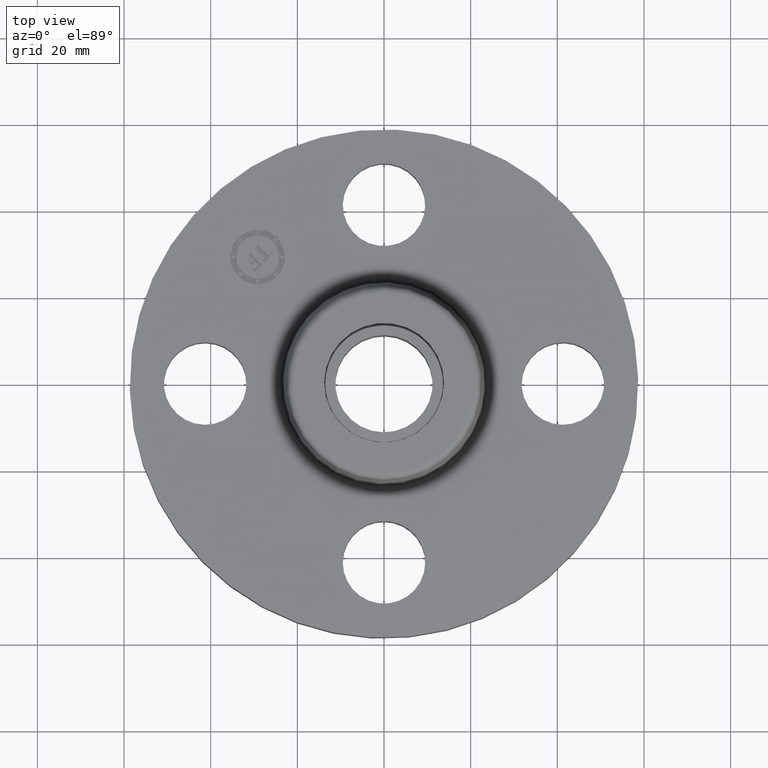
[diagram: clean part render]
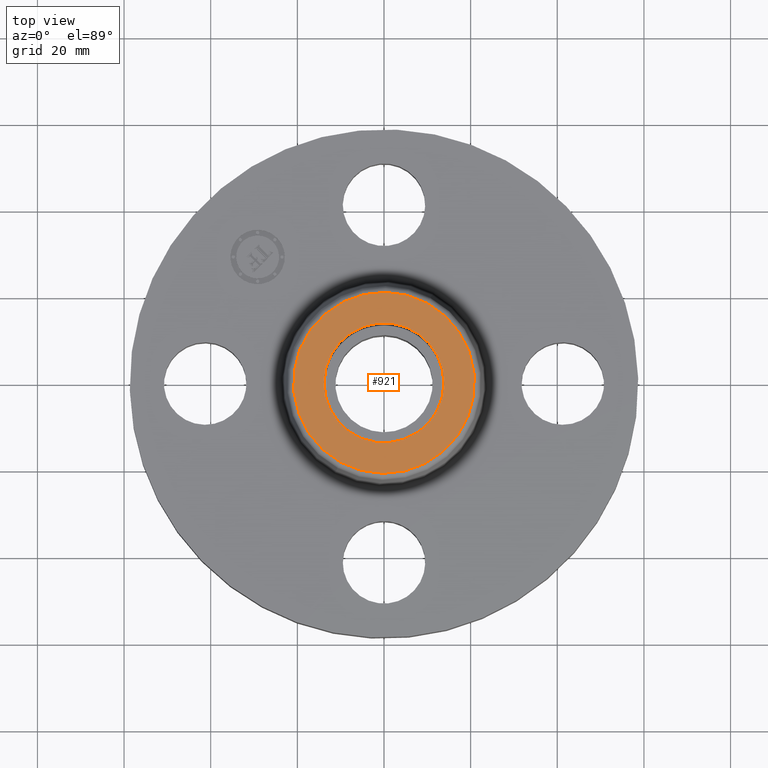
[diagram: same view with one face highlighted and labeled with its STEP entity id]
A machine part, top view. The second image highlights one B-rep face of the part: STEP entity #921.
In plain terms, the highlighted planar face has unit normal (0, 0, -1).
Its self-contained STEP definition (entity closure, byte-faithful):
#842=AXIS2_PLACEMENT_3D('Circle Axis2P3D',#840,#841,$) ;
#861=AXIS2_PLACEMENT_3D('Circle Axis2P3D',#859,#860,$) ;
#897=AXIS2_PLACEMENT_3D('Plane Axis2P3D',#894,#895,#896) ;
#905=AXIS2_PLACEMENT_3D('Circle Axis2P3D',#903,#904,$) ;
#914=AXIS2_PLACEMENT_3D('Circle Axis2P3D',#912,#913,$) ;
#837=CARTESIAN_POINT('Vertex',(0.394399308808,0.721943092224,1.)) ;
#840=CARTESIAN_POINT('Axis2P3D Location',(0.,0.,1.)) ;
#844=CARTESIAN_POINT('Vertex',(-0.394399308808,-0.721943092224,1.)) ;
#859=CARTESIAN_POINT('Axis2P3D Location',(0.,0.,1.)) ;
#894=CARTESIAN_POINT('Axis2P3D Location',(0.,0.822649769463,1.)) ;
#903=CARTESIAN_POINT('Axis2P3D Location',(1.39870617276E-016,-2.79741234551E-016,1.)) ;
#907=CARTESIAN_POINT('Vertex',(-0.478282496232,0.26128691854,1.)) ;
#909=CARTESIAN_POINT('Vertex',(0.478282496232,-0.26128691854,1.)) ;
#912=CARTESIAN_POINT('Axis2P3D Location',(1.22386790116E-016,0.,1.)) ;
#841=DIRECTION('Axis2P3D Direction',(0.,0.,-0.0393700787402)) ;
#860=DIRECTION('Axis2P3D Direction',(0.,0.,-0.0393700787402)) ;
#895=DIRECTION('Axis2P3D Direction',(0.,0.,-0.0393700787402)) ;
#896=DIRECTION('Axis2P3D XDirection',(0.0393700787402,0.,0.)) ;
#904=DIRECTION('Axis2P3D Direction',(0.,0.,-0.0393700787402)) ;
#913=DIRECTION('Axis2P3D Direction',(0.,0.,-0.0393700787402)) ;
#900=ORIENTED_EDGE('',*,*,#846,.F.) ;
#901=ORIENTED_EDGE('',*,*,#863,.F.) ;
#918=ORIENTED_EDGE('',*,*,#911,.T.) ;
#919=ORIENTED_EDGE('',*,*,#916,.T.) ;
#920=FACE_BOUND('',#917,.T.) ;
#921=ADVANCED_FACE('PartBody',(#902,#920),#898,.F.) ;
#843=CIRCLE('generated circle',#842,0.822649769463) ;
#862=CIRCLE('generated circle',#861,0.822649769463) ;
#906=CIRCLE('generated circle',#905,0.545000000002) ;
#915=CIRCLE('generated circle',#914,0.545000000002) ;
#846=EDGE_CURVE('',#838,#845,#843,.T.) ;
#863=EDGE_CURVE('',#845,#838,#862,.T.) ;
#911=EDGE_CURVE('',#908,#910,#906,.T.) ;
#916=EDGE_CURVE('',#910,#908,#915,.T.) ;
#899=EDGE_LOOP('',(#900,#901)) ;
#917=EDGE_LOOP('',(#918,#919)) ;
#902=FACE_OUTER_BOUND('',#899,.T.) ;
#898=PLANE('',#897) ;
#838=VERTEX_POINT('',#837) ;
#845=VERTEX_POINT('',#844) ;
#908=VERTEX_POINT('',#907) ;
#910=VERTEX_POINT('',#909) ;